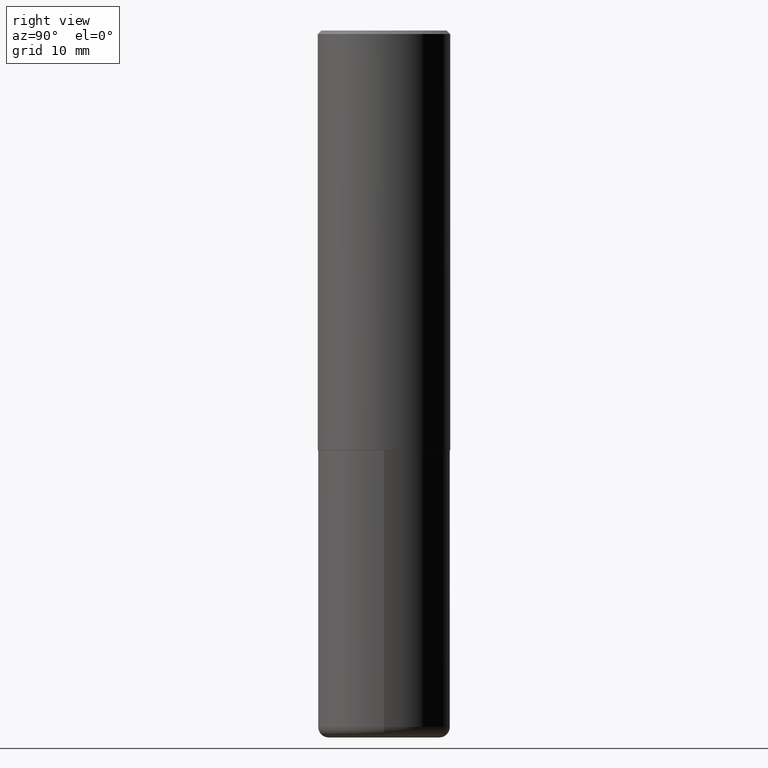
[diagram: clean part render]
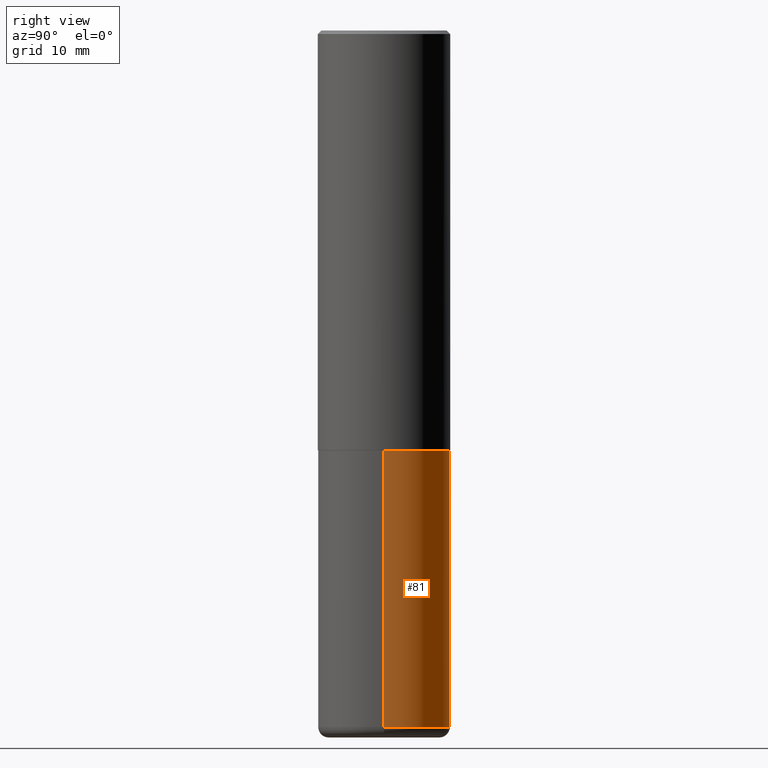
[diagram: same view with one face highlighted and labeled with its STEP entity id]
A machine part, right view. The second image highlights one B-rep face of the part: STEP entity #81.
In plain terms, the highlighted cylindrical surface (partial cylindrical patch) has radius 9.525 mm, axis along (-0, 0, 1).
Its self-contained STEP definition (entity closure, byte-faithful):
#5 = LINE ( 'NONE', #204, #127 ) ;
#11 = CARTESIAN_POINT ( 'NONE',  ( 0.3750000000000000555, -1.091087918388482013E-14, -2.375000000000000000 ) ) ;
#24 = DIRECTION ( 'NONE',  ( 1.000000000000000000, -6.982962677686266711E-15, 0.000000000000000000 ) ) ;
#26 = VERTEX_POINT ( 'NONE', #252 ) ;
#31 = AXIS2_PLACEMENT_3D ( 'NONE', #403, #271, #24 ) ;
#35 = EDGE_CURVE ( 'NONE', #177, #54, #168, .T. ) ;
#42 = CARTESIAN_POINT ( 'NONE',  ( -0.3750000000000000555, 2.664535259100376091E-15, -1.844600658845589598E-29 ) ) ;
#54 = VERTEX_POINT ( 'NONE', #265 ) ;
#64 = DIRECTION ( 'NONE',  ( -2.445468806185136597E-29, 3.491481338843145583E-15, 1.000000000000000000 ) ) ;
#67 = ORIENTED_EDGE ( 'NONE', *, *, #379, .T. ) ;
#68 = ORIENTED_EDGE ( 'NONE', *, *, #210, .F. ) ;
#72 = LINE ( 'NONE', #42, #306 ) ;
#76 = FACE_OUTER_BOUND ( 'NONE', #160, .T. ) ;
#80 = AXIS2_PLACEMENT_3D ( 'NONE', #165, #99, #167 ) ;
#81 = ADVANCED_FACE ( 'NONE', ( #76 ), #260, .T. ) ;
#99 = DIRECTION ( 'NONE',  ( -2.445468806185136597E-29, 3.491481338843145583E-15, 1.000000000000000000 ) ) ;
#127 = VECTOR ( 'NONE', #336, 39.37007874015748143 ) ;
#160 = EDGE_LOOP ( 'NONE', ( #67, #223, #324, #68 ) ) ;
#165 = CARTESIAN_POINT ( 'NONE',  ( 0.000000000000000000, 0.000000000000000000, 0.000000000000000000 ) ) ;
#167 = DIRECTION ( 'NONE',  ( 1.000000000000000000, -6.982962677686265922E-15, 4.876176775795935793E-29 ) ) ;
#168 = CIRCLE ( 'NONE', #248, 0.3750000000000000555 ) ;
#177 = VERTEX_POINT ( 'NONE', #11 ) ;
#187 = EDGE_CURVE ( 'NONE', #221, #54, #72, .T. ) ;
#191 = DIRECTION ( 'NONE',  ( 1.000000000000000000, -6.982962677686266711E-15, 0.000000000000000000 ) ) ;
#204 = CARTESIAN_POINT ( 'NONE',  ( 0.3750000000000000555, -2.618611004132350016E-15, 1.828566290923476203E-29 ) ) ;
#210 = EDGE_CURVE ( 'NONE', #26, #177, #5, .T. ) ;
#221 = VERTEX_POINT ( 'NONE', #264 ) ;
#223 = ORIENTED_EDGE ( 'NONE', *, *, #187, .T. ) ;
#248 = AXIS2_PLACEMENT_3D ( 'NONE', #350, #64, #191 ) ;
#252 = CARTESIAN_POINT ( 'NONE',  ( 0.3750000000000001110, -1.637504747917434403E-14, -3.939999999999999947 ) ) ;
#260 = CYLINDRICAL_SURFACE ( 'NONE', #80, 0.3750000000000000555 ) ;
#264 = CARTESIAN_POINT ( 'NONE',  ( -0.3750000000000001110, -1.109190121594161832E-14, -3.939999999999999947 ) ) ;
#265 = CARTESIAN_POINT ( 'NONE',  ( -0.3750000000000000555, -8.359817068296857158E-15, -2.375000000000000000 ) ) ;
#271 = DIRECTION ( 'NONE',  ( -2.445468806185136597E-29, 3.491481338843145583E-15, 1.000000000000000000 ) ) ;
#281 = CIRCLE ( 'NONE', #31, 0.3750000000000000555 ) ;
#306 = VECTOR ( 'NONE', #366, 39.37007874015748143 ) ;
#324 = ORIENTED_EDGE ( 'NONE', *, *, #35, .F. ) ;
#336 = DIRECTION ( 'NONE',  ( -2.445468806185136877E-29, 3.491481338843145188E-15, 1.000000000000000000 ) ) ;
#350 = CARTESIAN_POINT ( 'NONE',  ( 5.807988414689699417E-29, -8.292268179752470118E-15, -2.375000000000000000 ) ) ;
#366 = DIRECTION ( 'NONE',  ( -2.445468806185136877E-29, 3.491481338843145188E-15, 1.000000000000000000 ) ) ;
#379 = EDGE_CURVE ( 'NONE', #26, #221, #281, .T. ) ;
#403 = CARTESIAN_POINT ( 'NONE',  ( 9.635147096369438236E-29, -1.375643647504199401E-14, -3.939999999999999947 ) ) ;